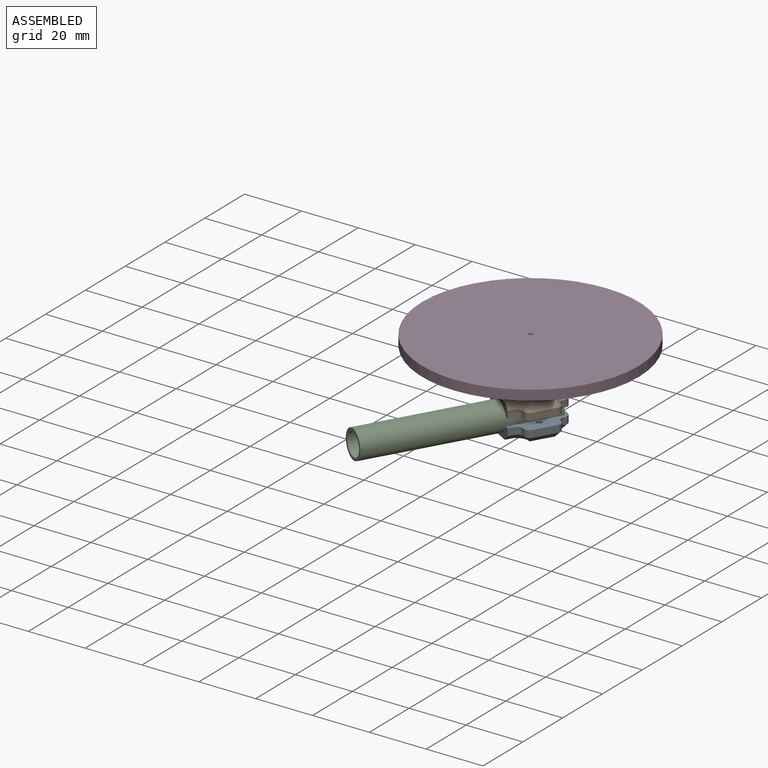
[diagram: assembled view]
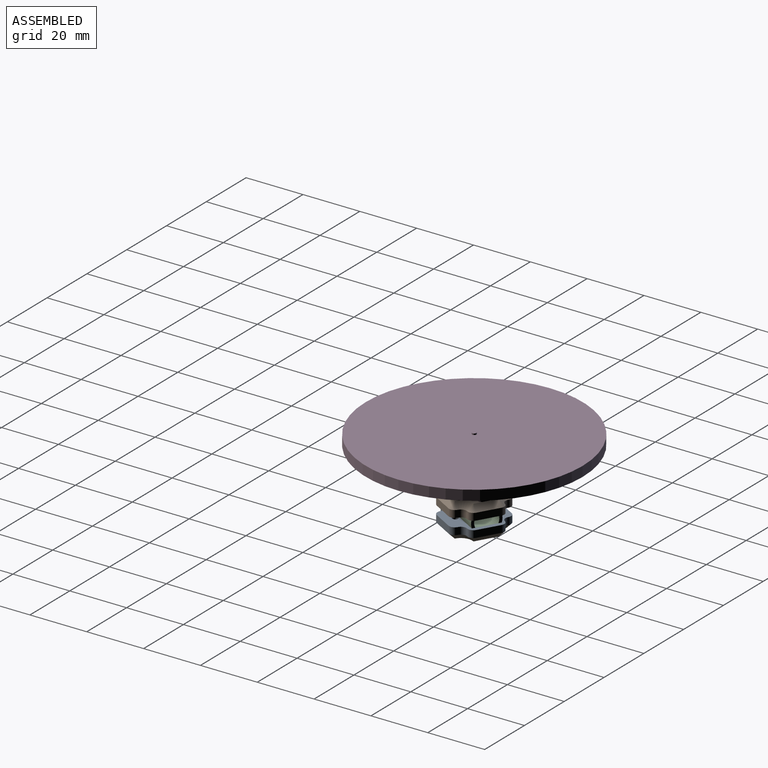
[diagram: assembled view, second angle]
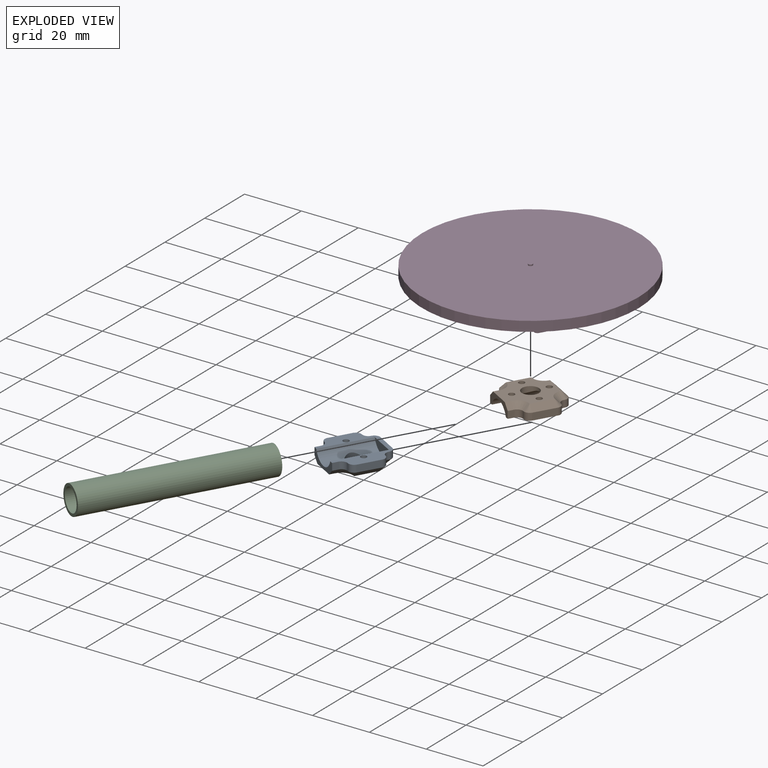
[diagram: exploded view]
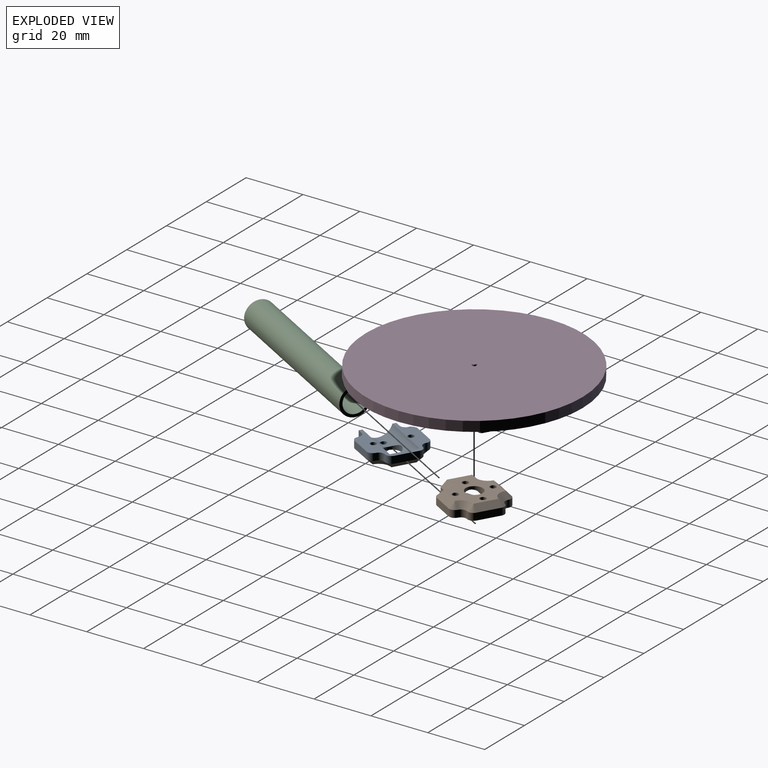
[diagram: exploded view, second angle]
ASSEMBLY  parts=4 mates=3
PART A: 52 faces, bbox 21.9x22.7x4.5 mm
  f0: plane 2.5x1.78mm, normal (0.87,-0.5,0), area 5.1mm2, adj f14,f17,f30,f51
  f1: plane 2.5x0.04mm, normal (-0.5,-0.87,0), area 0.1mm2, adj f17,f18,f32,f51
  f2: plane 6.93x4mm, normal (0.87,-0.5,0), area 20mm2, adj f18,f19,f34,f51
  f3: plane 2.5x0.04mm, normal (0.5,0.87,0), area 0.1mm2, adj f19,f20,f36,f51
  f4: plane 2.5x0.04mm, normal (0.87,-0.5,0), area 0.1mm2, adj f20,f21,f38,f51
  f5: plane 6.93x4mm, normal (0.5,0.87,0), area 20mm2, adj f21,f22,f40,f51
  f6: plane 2.5x0.04mm, normal (-0.87,0.5,0), area 0.1mm2, adj f22,f23,f42,f51
  f7: plane 2.5x0.04mm, normal (0.5,0.87,0), area 0.1mm2, adj f23,f25,f44,f51
  f8: plane 6.93x4mm, normal (-0.87,0.5,0), area 20mm2, adj f25,f26,f46,f51
  f9: plane 2.5x0.04mm, normal (-0.5,-0.87,0), area 0.1mm2, adj f24,f26,f48,f51
  f10: plane 2.5x1.78mm, normal (-0.87,0.5,0), area 5.1mm2, adj f14,f24,f50,f51
  f11: cylinder r=1.05mm len=2.1mm, axis (0,0,1), area 7mm2, adj f16,f28
  f12: cylinder r=1.05mm len=2.1mm, axis (0,0,1), area 7mm2, adj f16,f28
  f13: cylinder r=1.05mm len=4.5mm, axis (0,0,1), area 29.7mm2, adj f16,f51
  f14: plane 10.39x6mm, normal (-0.5,-0.87,0), area 25.5mm2, adj f0,f10,f16,f28,f30,f50,f51
  f15: cylinder r=1.05mm len=4.5mm, axis (0,0,1), area 29.7mm2, adj f16,f51
  f16: plane 19.68x17.94mm, normal (0,0,1), area 181.2mm2, adj f11,f12,f13,f14,f15,f27,f30,f31
  f17: cylinder r=2mm len=2.73mm, axis (0,0,1), area 7.9mm2, adj f0,f1,f31,f51
  f18: cylinder r=2mm len=2.73mm, axis (0,0,-1), area 7.9mm2, adj f1,f2,f33,f51
  f19: cylinder r=2mm len=2.73mm, axis (0,0,1), area 7.9mm2, adj f2,f3,f35,f51
  f20: cylinder r=2mm len=2.73mm, axis (0,0,-1), area 7.9mm2, adj f3,f4,f37,f51
  f21: cylinder r=2mm len=2.73mm, axis (0,0,1), area 7.9mm2, adj f4,f5,f39,f51
  f22: cylinder r=2mm len=2.73mm, axis (0,0,-1), area 7.9mm2, adj f5,f6,f41,f51
  f23: cylinder r=2mm len=2.73mm, axis (0,0,1), area 7.9mm2, adj f6,f7,f43,f51
  f24: cylinder r=2mm len=2.73mm, axis (0,0,-1), area 7.9mm2, adj f9,f10,f49,f51
  f25: cylinder r=2mm len=2.73mm, axis (0,0,-1), area 7.9mm2, adj f7,f8,f45,f51
  f26: cylinder r=2mm len=2.73mm, axis (0,0,1), area 7.9mm2, adj f8,f9,f47,f51
  f27: cylinder r=3mm len=6mm, axis (0,0,1), area 28mm2, adj f16,f28
  f28: cylinder r=5mm len=20.88mm, axis (-0.5,-0.87,0), area 198.7mm2, adj f11,f12,f14,f27,f29,f51
  f29: plane 8.26x4.77mm, normal (-0.5,-0.87,0), area 24.5mm2, adj f28,f51
  f30: plane 2.78x2.76mm, normal (0.61,-0.35,0.71), area 5.8mm2, adj f0,f14,f16,f31
  f31: cone r=4mm half-angle=45deg, axis (0,0,1), area 13.3mm2, adj f16,f17,f30,f32
  f32: plane 2x1.76mm, normal (-0.35,-0.61,0.71), area 0.1mm2, adj f1,f16,f31,f33
  f33: cone r=2mm half-angle=45deg, axis (0,0,-1), area 4.4mm2, adj f18,f32,f34
  f34: plane 7.93x5.73mm, normal (0.61,-0.35,0.71), area 22.6mm2, adj f2,f16,f33,f35
  f35: cone r=2mm half-angle=45deg, axis (0,0,-1), area 4.4mm2, adj f19,f34,f36
  f36: plane 2x1.76mm, normal (0.35,0.61,0.71), area 0.1mm2, adj f3,f16,f35,f37
  f37: cone r=4mm half-angle=45deg, axis (0,0,1), area 13.3mm2, adj f16,f20,f36,f38
  f38: plane 2x1.76mm, normal (0.61,-0.35,0.71), area 0.1mm2, adj f4,f16,f37,f39
  f39: cone r=2mm half-angle=45deg, axis (0,0,-1), area 4.4mm2, adj f21,f38,f40
  f40: plane 7.93x5.73mm, normal (0.35,0.61,0.71), area 22.6mm2, adj f5,f16,f39,f41
  f41: cone r=2mm half-angle=45deg, axis (0,0,-1), area 4.4mm2, adj f22,f40,f42
  f42: plane 2x1.76mm, normal (-0.61,0.35,0.71), area 0.1mm2, adj f6,f16,f41,f43
  f43: cone r=4mm half-angle=45deg, axis (0,0,1), area 13.3mm2, adj f16,f23,f42,f44
  f44: plane 2x1.76mm, normal (0.35,0.61,0.71), area 0.1mm2, adj f7,f16,f43,f45
  f45: cone r=2mm half-angle=45deg, axis (0,0,-1), area 4.4mm2, adj f25,f44,f46
  f46: plane 7.93x5.73mm, normal (-0.61,0.35,0.71), area 22.6mm2, adj f8,f16,f45,f47
  f47: cone r=2mm half-angle=45deg, axis (0,0,-1), area 4.4mm2, adj f26,f46,f48
  f48: plane 2x1.76mm, normal (-0.35,-0.61,0.71), area 0.1mm2, adj f9,f16,f47,f49
  f49: cone r=4mm half-angle=45deg, axis (0,0,1), area 13.3mm2, adj f16,f24,f48,f50
  f50: plane 2.78x2.76mm, normal (-0.61,0.35,0.71), area 5.8mm2, adj f10,f14,f16,f49
  f51: plane 22.68x21.94mm, normal (0,0,-1), area 152.3mm2, adj f0,f1,f2,f3,f4,f5,f6,f7
PART B: same geometry as A
PART C: 4 faces, bbox 41.1x61.2x10 mm
  f0: plane 10x8.66mm, normal (0.5,0.87,0), area 28.3mm2, adj f2,f3
  f1: plane 10x8.66mm, normal (-0.5,-0.87,0), area 28.3mm2, adj f2,f3
  f2: cylinder r=5mm len=61.25mm, axis (-0.5,-0.87,0), area 2040.5mm2, adj f0,f1
  f3: cylinder r=4mm len=60.25mm, axis (-0.5,-0.87,0), area 1632.4mm2, adj f0,f1
PART D: 46 faces, bbox 76.2x76.2x18.5 mm
  f0: plane 3.46x2mm, normal (0.5,0.87,0), area 8mm2, adj f24,f25,f29,f35
  f1: plane 2x1.47mm, normal (0.87,-0.5,0), area 3.4mm2, adj f2,f24,f25,f29
  f2: cylinder r=1.05mm len=2mm, axis (0,0,-1), area 1.8mm2, adj f1,f3,f24,f25
  f3: plane 2x1.22mm, normal (0.87,-0.5,0), area 2.8mm2, adj f2,f24,f25,f32
  f4: plane 2x1.82mm, normal (0.5,0.87,0), area 4.2mm2, adj f24,f25,f32,f33
  f5: plane 3.46x2mm, normal (-0.87,0.5,0), area 8mm2, adj f24,f25,f26,f33
  f6: plane 2x1.47mm, normal (0.5,0.87,0), area 3.4mm2, adj f7,f24,f25,f26
  f7: cylinder r=1.05mm len=2mm, axis (0,0,-1), area 1.8mm2, adj f6,f8,f24,f25
  f8: plane 2x1.22mm, normal (0.5,0.87,0), area 2.8mm2, adj f7,f24,f25,f30
  f9: plane 2x1.82mm, normal (-0.87,0.5,0), area 4.2mm2, adj f24,f25,f30,f31
  f10: plane 3.46x2mm, normal (-0.5,-0.87,0), area 8mm2, adj f24,f25,f27,f31
  f11: plane 2x1.47mm, normal (-0.87,0.5,0), area 3.4mm2, adj f12,f24,f25,f27
  f12: cylinder r=1.05mm len=2mm, axis (0,0,-1), area 1.8mm2, adj f11,f13,f24,f25
  f13: plane 2x1.22mm, normal (-0.87,0.5,0), area 2.8mm2, adj f12,f24,f25,f36
  f14: plane 2x1.82mm, normal (-0.5,-0.87,0), area 4.2mm2, adj f24,f25,f36,f37
  f15: plane 3.46x2mm, normal (0.87,-0.5,0), area 8mm2, adj f24,f25,f28,f37
  f16: plane 2x1.47mm, normal (-0.5,-0.87,0), area 3.4mm2, adj f17,f24,f25,f28
  f17: cylinder r=1.05mm len=2mm, axis (0,0,-1), area 1.8mm2, adj f16,f18,f24,f25
  f18: plane 2x1.22mm, normal (-0.5,-0.87,0), area 2.8mm2, adj f17,f24,f25,f34
  f19: cylinder r=1.05mm len=2.1mm, axis (0,0,-1), area 13.2mm2, adj f24,f25
  f20: cylinder r=1.05mm len=2.1mm, axis (0,0,-1), area 13.2mm2, adj f24,f25
  f21: cylinder r=1.05mm len=2.1mm, axis (0,0,-1), area 13.2mm2, adj f24,f25
  f22: plane 2x1.82mm, normal (0.87,-0.5,0), area 4.2mm2, adj f24,f25,f34,f35
  f23: cylinder r=1.05mm len=2.1mm, axis (0,0,-1), area 13.2mm2, adj f24,f25
  f24: plane 15.26x15.26mm, normal (0,0,1), area 72mm2, adj f0,f1,f2,f3,f4,f5,f6,f7
  f25: plane 15.26x15.26mm, normal (0,0,-1), area 100.3mm2, adj f0,f1,f2,f3,f4,f5,f6,f7
  f26: cylinder r=1mm len=2mm, axis (0,0,-1), area 3.1mm2, adj f5,f6,f24,f25
  f27: cylinder r=1mm len=2mm, axis (0,0,1), area 3.1mm2, adj f10,f11,f24,f25
  f28: cylinder r=1mm len=2mm, axis (0,0,-1), area 3.1mm2, adj f15,f16,f24,f25
  f29: cylinder r=1mm len=2mm, axis (0,0,1), area 3.1mm2, adj f0,f1,f24,f25
  f30: cylinder r=1mm len=2mm, axis (0,0,1), area 3.1mm2, adj f8,f9,f24,f25
  f31: cylinder r=1mm len=2mm, axis (0,0,-1), area 3.1mm2, adj f9,f10,f24,f25
  f32: cylinder r=1mm len=2mm, axis (0,0,-1), area 3.1mm2, adj f3,f4,f24,f25
  f33: cylinder r=1mm len=2mm, axis (0,0,1), area 3.1mm2, adj f4,f5,f24,f25
  f34: cylinder r=1mm len=2mm, axis (0,0,1), area 3.1mm2, adj f18,f22,f24,f25
  f35: cylinder r=1mm len=2mm, axis (0,0,-1), area 3.1mm2, adj f0,f22,f24,f25
  f36: cylinder r=1mm len=2mm, axis (0,0,-1), area 3.1mm2, adj f13,f14,f24,f25
  f37: cylinder r=1mm len=2mm, axis (0,0,1), area 3.1mm2, adj f14,f15,f24,f25
  f38: cylinder r=3mm len=6mm, axis (0,0,-1), area 37.7mm2, adj f24,f40
  f39: cylinder r=8.4mm len=16.8mm, axis (0,0,-1), area 554.2mm2, adj f40,f41
  f40: plane 16.8x16.8mm, normal (0,0,-1), area 193.4mm2, adj f38,f39
  f41: plane 76.2x76.2mm, normal (0,0,-1), area 4338.7mm2, adj f39,f42
  f42: cylinder r=38.1mm len=76.2mm, axis (0,0,-1), area 837.9mm2, adj f41,f43
  f43: plane 76.2x76.2mm, normal (0,0,1), area 4558.6mm2, adj f42,f45
  f44: plane 1.5x1.5mm, normal (0,0,1), area 1.8mm2, adj f45
  f45: cylinder r=0.75mm len=1.5mm, axis (0,0,-1), area 2.4mm2, adj f43,f44
PLACE A rot(axis=(-0.5,-0.87,0),180deg) t=(5.6,-15.98,-32.91)mm
PLACE B t=(-0.74,-12.32,-20.91)mm
PLACE C t=(-0.74,-12.32,-20.91)mm
PLACE D t=(-0.74,-12.32,-20.91)mm
MATE fastened D.f20 <-> B.f11  axis (0,0,-1) through (38.36,48.08,-20.91)mm
MATE fastened C.f2 <-> B.f28  axis (-0.5,-0.87,0) through (45.63,60.68,-26.91)mm
MATE fastened C.f2 <-> A.f28  axis (0.5,0.87,0) through (45.63,60.68,-26.91)mm
